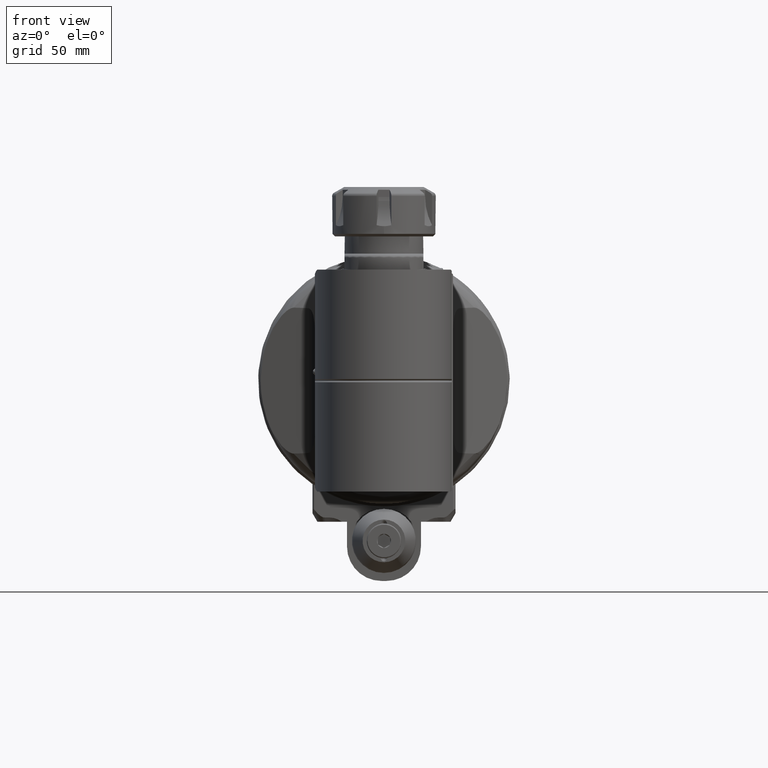
[diagram: clean part render]
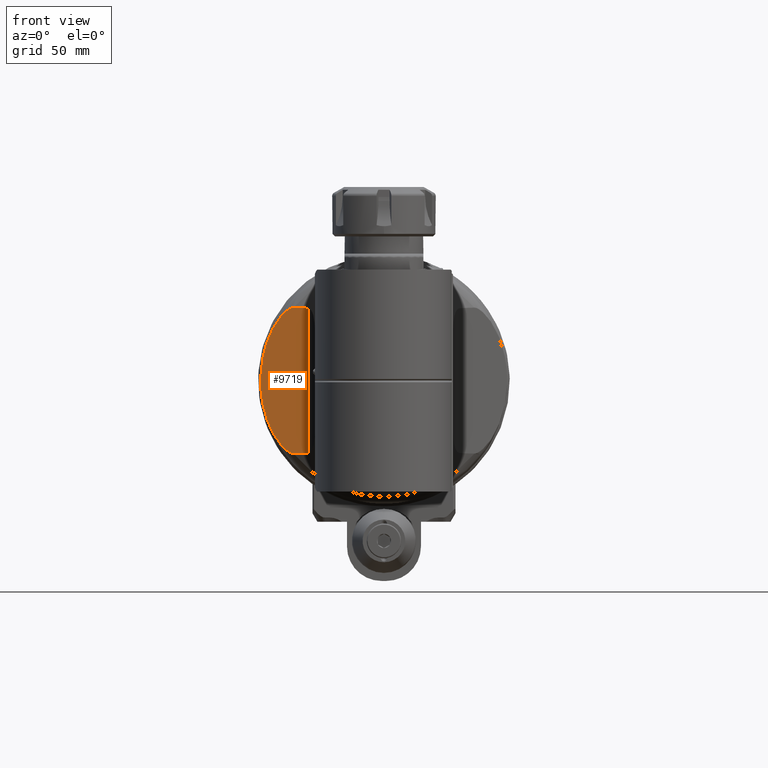
[diagram: same view with one face highlighted and labeled with its STEP entity id]
A machine part, front view. The second image highlights one B-rep face of the part: STEP entity #9719.
In plain terms, the highlighted planar face has unit normal (0.342, 0.9397, -0).
Its self-contained STEP definition (entity closure, byte-faithful):
#65=ELLIPSE('',#10562,50.3672702558906,29.5863002294594);
#69=ELLIPSE('',#10570,50.3672702558906,29.5863002294594);
#70=ELLIPSE('',#10572,53.2088886237962,50.);
#532=B_SPLINE_CURVE_WITH_KNOTS('',3,(#15039,#15040,#15041,#15042,#15043,
#15044,#15045,#15046,#15047,#15048,#15049,#15050,#15051,#15052,#15053,#15054,
#15055,#15056),.UNSPECIFIED.,.F.,.F.,(4,2,2,2,2,2,2,2,4),(-9.47110878514761,
-9.46225514204568,-9.39474930405345,-9.12858238721657,-8.80354910515075,
-8.47851582308493,-8.1777676130302,-7.87701940297547,-7.09037016510726),
 .UNSPECIFIED.);
#533=B_SPLINE_CURVE_WITH_KNOTS('',3,(#15059,#15060,#15061,#15062,#15063,
#15064,#15065,#15066,#15067,#15068,#15069,#15070,#15071,#15072,#15073,#15074,
#15075,#15076),.UNSPECIFIED.,.F.,.F.,(4,2,2,2,2,2,2,2,4),(2.9353606262133,
2.94421427000487,3.0117201079971,3.27788702483398,3.6029203068998,3.92795358896562,
4.22870179902035,4.52945000907508,5.31609924694026),.UNSPECIFIED.);
#1316=FACE_OUTER_BOUND('',#1898,.T.);
#1898=EDGE_LOOP('',(#6436,#6437,#6438,#6439,#6440,#6441));
#2548=LINE('',#14939,#3175);
#3175=VECTOR('',#11714,58.64425386089);
#3868=VERTEX_POINT('',#14921);
#3869=VERTEX_POINT('',#14938);
#3871=VERTEX_POINT('',#14986);
#3876=VERTEX_POINT('',#15034);
#3877=VERTEX_POINT('',#15038);
#3878=VERTEX_POINT('',#15057);
#4854=EDGE_CURVE('',#3868,#3869,#2548,.T.);
#4869=EDGE_CURVE('',#3871,#3869,#65,.T.);
#4877=EDGE_CURVE('',#3868,#3876,#69,.T.);
#4878=EDGE_CURVE('',#3876,#3877,#532,.T.);
#4879=EDGE_CURVE('',#3877,#3878,#70,.T.);
#4880=EDGE_CURVE('',#3871,#3878,#533,.T.);
#6436=ORIENTED_EDGE('',*,*,#4877,.T.);
#6437=ORIENTED_EDGE('',*,*,#4878,.T.);
#6438=ORIENTED_EDGE('',*,*,#4879,.T.);
#6439=ORIENTED_EDGE('',*,*,#4880,.F.);
#6440=ORIENTED_EDGE('',*,*,#4869,.T.);
#6441=ORIENTED_EDGE('',*,*,#4854,.F.);
#9153=PLANE('',#10571);
#9719=ADVANCED_FACE('',(#1316),#9153,.F.);
#10562=AXIS2_PLACEMENT_3D('',#14987,#11765,#11766);
#10570=AXIS2_PLACEMENT_3D('',#15036,#11781,#11782);
#10571=AXIS2_PLACEMENT_3D('',#15037,#11783,#11784);
#10572=AXIS2_PLACEMENT_3D('',#15058,#11785,#11786);
#11714=DIRECTION('',(0.,1.,0.));
#11765=DIRECTION('center_axis',(0.939692620785897,0.,-0.342020143325699));
#11766=DIRECTION('ref_axis',(-0.342020143325699,1.63830670781049E-15,-0.939692620785897));
#11781=DIRECTION('center_axis',(0.939692620785897,0.,-0.342020143325699));
#11782=DIRECTION('ref_axis',(-0.342020143325699,1.63830670781049E-15,-0.939692620785897));
#11783=DIRECTION('center_axis',(-0.939692620785897,0.,0.342020143325699));
#11784=DIRECTION('ref_axis',(0.342020143325699,0.,0.939692620785897));
#11785=DIRECTION('center_axis',(0.939692620785897,0.,-0.342020143325699));
#11786=DIRECTION('ref_axis',(-0.342020143325699,0.,-0.939692620785897));
#14921=CARTESIAN_POINT('',(23.04205971778,-29.32212693045,-30.6319194267));
#14938=CARTESIAN_POINT('',(23.04205971778,29.32212693045,-30.6319194267));
#14939=CARTESIAN_POINT('',(23.04205971778,-29.32212693045,-30.6319194267));
#14986=CARTESIAN_POINT('',(20.8461875045416,29.5857914056551,-36.6650287463848));
#14987=CARTESIAN_POINT('Origin',(20.7451569433893,5.32907051820075E-14,
-36.9426079340045));
#15034=CARTESIAN_POINT('',(20.846187502347,-29.585791404499,-36.665028753365));
#15036=CARTESIAN_POINT('Origin',(20.7451569433893,5.32907051820075E-14,
-36.9426079340045));
#15037=CARTESIAN_POINT('Origin',(24.00000004808,0.,-28.));
#15038=CARTESIAN_POINT('',(16.31464863572,-9.363995484987,-49.11532946603));
#15039=CARTESIAN_POINT('Ctrl Pts',(20.84618750274,-29.5857914029678,-36.6650287535136));
#15040=CARTESIAN_POINT('Ctrl Pts',(20.8354969161672,-29.5858990841521,-36.694400898723));
#15041=CARTESIAN_POINT('Ctrl Pts',(20.8250300565751,-29.585260158103,-36.7231583591048));
#15042=CARTESIAN_POINT('Ctrl Pts',(20.738047373882,-29.5748920999617,-36.9621413156877));
#15043=CARTESIAN_POINT('Ctrl Pts',(20.6474740822835,-29.5221310747005,-37.2109893891602));
#15044=CARTESIAN_POINT('Ctrl Pts',(20.2825600158396,-29.2079207962777,-38.2135825467563));
#15045=CARTESIAN_POINT('Ctrl Pts',(19.9758958164078,-28.6338312433967,-39.05613551005));
#15046=CARTESIAN_POINT('Ctrl Pts',(19.4425932033076,-27.4287590831444,-40.5213723972789));
#15047=CARTESIAN_POINT('Ctrl Pts',(19.1522606848867,-26.6017151146837,-41.3190544357736));
#15048=CARTESIAN_POINT('Ctrl Pts',(18.6191470504405,-24.8187856959593,-42.7837721084178));
#15049=CARTESIAN_POINT('Ctrl Pts',(18.3765030725583,-23.8625497430824,-43.4504309586156));
#15050=CARTESIAN_POINT('Ctrl Pts',(17.9817805222086,-22.1249619431992,-44.5349222526509));
#15051=CARTESIAN_POINT('Ctrl Pts',(17.7890019232365,-21.1784209335023,-45.0645771002807));
#15052=CARTESIAN_POINT('Ctrl Pts',(17.4371534747882,-19.2325943001654,-46.0312727674626));
#15053=CARTESIAN_POINT('Ctrl Pts',(17.2779022721392,-18.2335890551422,-46.4688118507617));
#15054=CARTESIAN_POINT('Ctrl Pts',(16.7970626489286,-14.8926841819625,-47.7899078579117));
#15055=CARTESIAN_POINT('Ctrl Pts',(16.5089546643454,-12.164113097351,-48.5814780399186));
#15056=CARTESIAN_POINT('Ctrl Pts',(16.3146486357186,-9.36399548498797,-49.1153294660346));
#15057=CARTESIAN_POINT('',(16.31464863573,9.36399548502,-49.11532946603));
#15058=CARTESIAN_POINT('Origin',(34.1911666075347,0.,0.));
#15059=CARTESIAN_POINT('Ctrl Pts',(20.8461875052387,29.5857914029426,-36.6650287466485));
#15060=CARTESIAN_POINT('Ctrl Pts',(20.835496917798,29.585899084251,-36.6944008942423));
#15061=CARTESIAN_POINT('Ctrl Pts',(20.8250300573607,29.5852601581966,-36.7231583569464));
#15062=CARTESIAN_POINT('Ctrl Pts',(20.738047373882,29.5748920999617,-36.9621413156877));
#15063=CARTESIAN_POINT('Ctrl Pts',(20.6474740822835,29.5221310747005,-37.2109893891602));
#15064=CARTESIAN_POINT('Ctrl Pts',(20.2825600158396,29.2079207962777,-38.2135825467563));
#15065=CARTESIAN_POINT('Ctrl Pts',(19.9758958164078,28.6338312433967,-39.05613551005));
#15066=CARTESIAN_POINT('Ctrl Pts',(19.4425932033076,27.4287590831444,-40.5213723972789));
#15067=CARTESIAN_POINT('Ctrl Pts',(19.1522606848867,26.6017151146837,-41.3190544357736));
#15068=CARTESIAN_POINT('Ctrl Pts',(18.6191470504405,24.8187856959593,-42.7837721084178));
#15069=CARTESIAN_POINT('Ctrl Pts',(18.3765030725583,23.8625497430824,-43.4504309586156));
#15070=CARTESIAN_POINT('Ctrl Pts',(17.9817805222086,22.1249619431991,-44.5349222526509));
#15071=CARTESIAN_POINT('Ctrl Pts',(17.7890019232365,21.1784209335023,-45.0645771002807));
#15072=CARTESIAN_POINT('Ctrl Pts',(17.4371534747882,19.2325943001654,-46.0312727674626));
#15073=CARTESIAN_POINT('Ctrl Pts',(17.2779022721392,18.2335890551422,-46.4688118507617));
#15074=CARTESIAN_POINT('Ctrl Pts',(16.79706264893,14.8926841819719,-47.789907857908));
#15075=CARTESIAN_POINT('Ctrl Pts',(16.5089546643476,12.164113097372,-48.5814780399126));
#15076=CARTESIAN_POINT('Ctrl Pts',(16.3146486357208,9.36399548502033,-49.1153294660284));